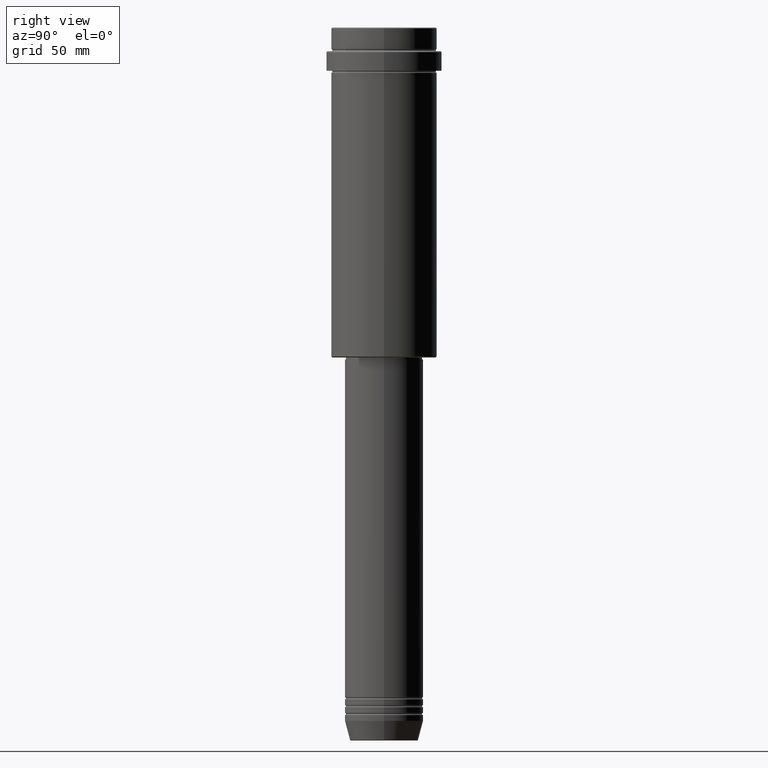
[diagram: clean part render]
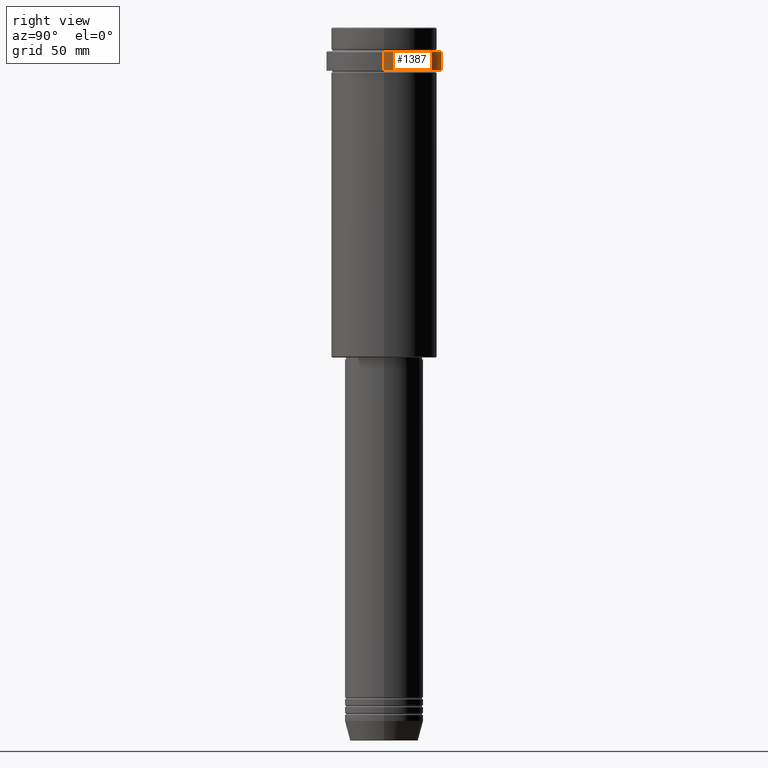
[diagram: same view with one face highlighted and labeled with its STEP entity id]
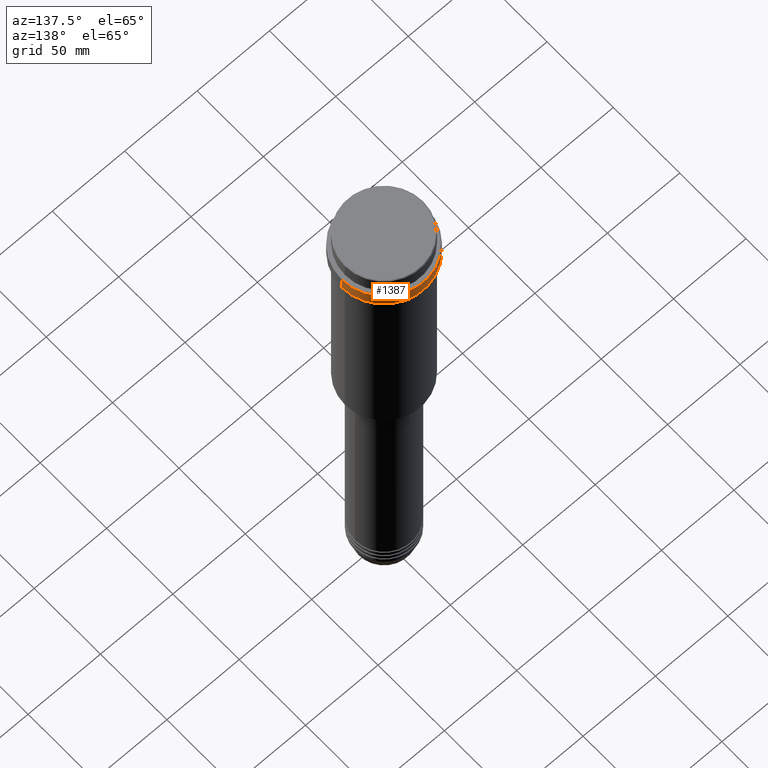
[diagram: same view with one face highlighted and labeled with its STEP entity id]
A machine part, right view. The second image highlights one B-rep face of the part: STEP entity #1387.
A second angle (auxiliary view) of the same face is appended — the face is thin or edge-on in the first view.
In plain terms, the highlighted cylindrical surface (partial cylindrical patch) has radius 29.5 mm, axis along (-0, -0, 1).
Its self-contained STEP definition (entity closure, byte-faithful):
#39 = LINE ( 'NONE', #582, #550 ) ;
#75 = DIRECTION ( 'NONE',  ( 1.000000000000000000, 0.000000000000000000, 0.000000000000000000 ) ) ;
#173 = EDGE_CURVE ( 'NONE', #907, #880, #486, .T. ) ;
#215 = VERTEX_POINT ( 'NONE', #1012 ) ;
#226 = EDGE_LOOP ( 'NONE', ( #808, #1142, #236, #1025 ) ) ;
#234 = VERTEX_POINT ( 'NONE', #412 ) ;
#236 = ORIENTED_EDGE ( 'NONE', *, *, #319, .T. ) ;
#275 = CARTESIAN_POINT ( 'NONE',  ( 29.49999999999999645, 0.000000000000000000, -22.00000000000000711 ) ) ;
#319 = EDGE_CURVE ( 'NONE', #234, #215, #505, .T. ) ;
#406 = FACE_OUTER_BOUND ( 'NONE', #226, .T. ) ;
#409 = DIRECTION ( 'NONE',  ( -0.000000000000000000, -0.000000000000000000, 1.000000000000000000 ) ) ;
#412 = CARTESIAN_POINT ( 'NONE',  ( -29.50000000000000000, 3.612708057484691604E-15, -12.50000000000006040 ) ) ;
#474 = DIRECTION ( 'NONE',  ( -0.000000000000000000, -0.000000000000000000, 1.000000000000000000 ) ) ;
#486 = CIRCLE ( 'NONE', #1317, 29.49999999999999645 ) ;
#505 = CIRCLE ( 'NONE', #1293, 29.50000000000000000 ) ;
#550 = VECTOR ( 'NONE', #474, 1000.000000000000000 ) ;
#582 = CARTESIAN_POINT ( 'NONE',  ( 29.50000000000000000, 0.000000000000000000, 0.000000000000000000 ) ) ;
#613 = DIRECTION ( 'NONE',  ( 1.000000000000000000, 0.000000000000000000, 0.000000000000000000 ) ) ;
#676 = CARTESIAN_POINT ( 'NONE',  ( 0.000000000000000000, 0.000000000000000000, -12.50000000000006040 ) ) ;
#733 = CARTESIAN_POINT ( 'NONE',  ( -29.50000000000000000, 3.612708057484691604E-15, 0.000000000000000000 ) ) ;
#808 = ORIENTED_EDGE ( 'NONE', *, *, #173, .T. ) ;
#811 = CARTESIAN_POINT ( 'NONE',  ( -29.49999999999999645, 3.612708057484690815E-15, -22.00000000000000711 ) ) ;
#833 = CYLINDRICAL_SURFACE ( 'NONE', #919, 29.50000000000000000 ) ;
#845 = DIRECTION ( 'NONE',  ( -0.000000000000000000, -0.000000000000000000, 1.000000000000000000 ) ) ;
#880 = VERTEX_POINT ( 'NONE', #811 ) ;
#907 = VERTEX_POINT ( 'NONE', #275 ) ;
#919 = AXIS2_PLACEMENT_3D ( 'NONE', #1145, #1271, #613 ) ;
#971 = EDGE_CURVE ( 'NONE', #880, #234, #1366, .T. ) ;
#1012 = CARTESIAN_POINT ( 'NONE',  ( 29.50000000000000000, 0.000000000000000000, -12.50000000000006040 ) ) ;
#1025 = ORIENTED_EDGE ( 'NONE', *, *, #1294, .F. ) ;
#1045 = VECTOR ( 'NONE', #409, 1000.000000000000000 ) ;
#1142 = ORIENTED_EDGE ( 'NONE', *, *, #971, .T. ) ;
#1145 = CARTESIAN_POINT ( 'NONE',  ( 0.000000000000000000, 0.000000000000000000, 0.000000000000000000 ) ) ;
#1186 = DIRECTION ( 'NONE',  ( 1.000000000000000000, 0.000000000000000000, 0.000000000000000000 ) ) ;
#1271 = DIRECTION ( 'NONE',  ( -0.000000000000000000, -0.000000000000000000, 1.000000000000000000 ) ) ;
#1291 = DIRECTION ( 'NONE',  ( 0.000000000000000000, 0.000000000000000000, -1.000000000000000000 ) ) ;
#1293 = AXIS2_PLACEMENT_3D ( 'NONE', #676, #1291, #1186 ) ;
#1294 = EDGE_CURVE ( 'NONE', #907, #215, #39, .T. ) ;
#1317 = AXIS2_PLACEMENT_3D ( 'NONE', #1378, #845, #75 ) ;
#1366 = LINE ( 'NONE', #733, #1045 ) ;
#1378 = CARTESIAN_POINT ( 'NONE',  ( 0.000000000000000000, 0.000000000000000000, -22.00000000000000711 ) ) ;
#1387 = ADVANCED_FACE ( 'NONE', ( #406 ), #833, .T. ) ;